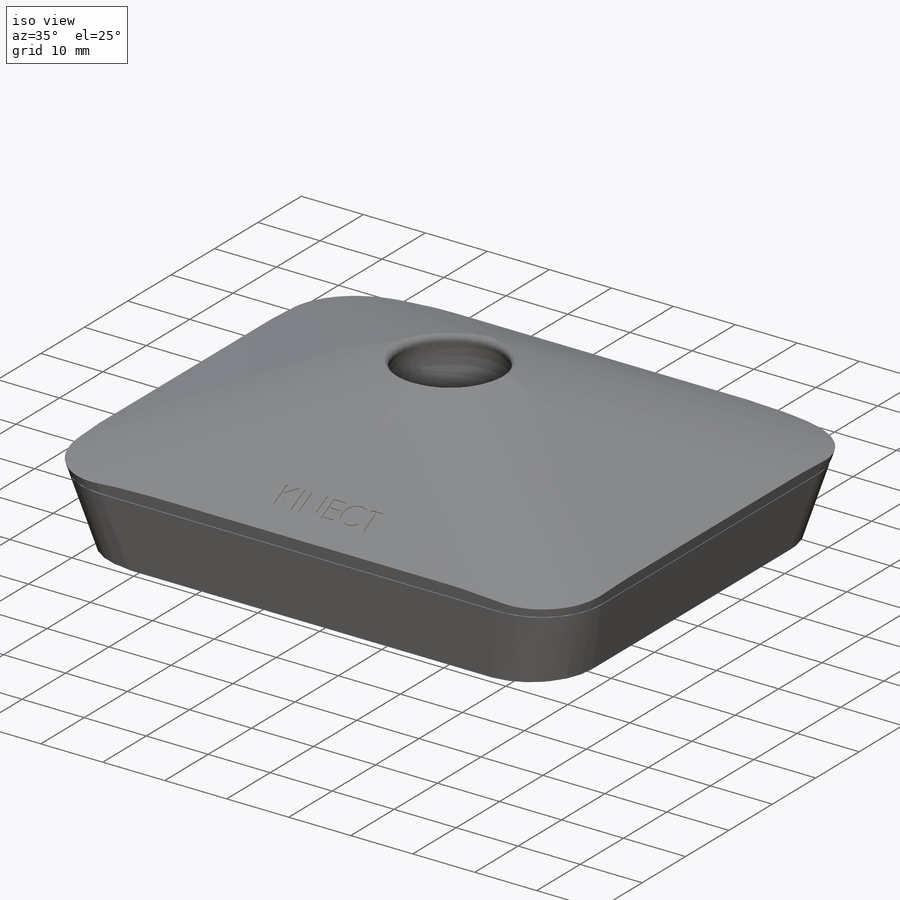
[diagram: iso view]
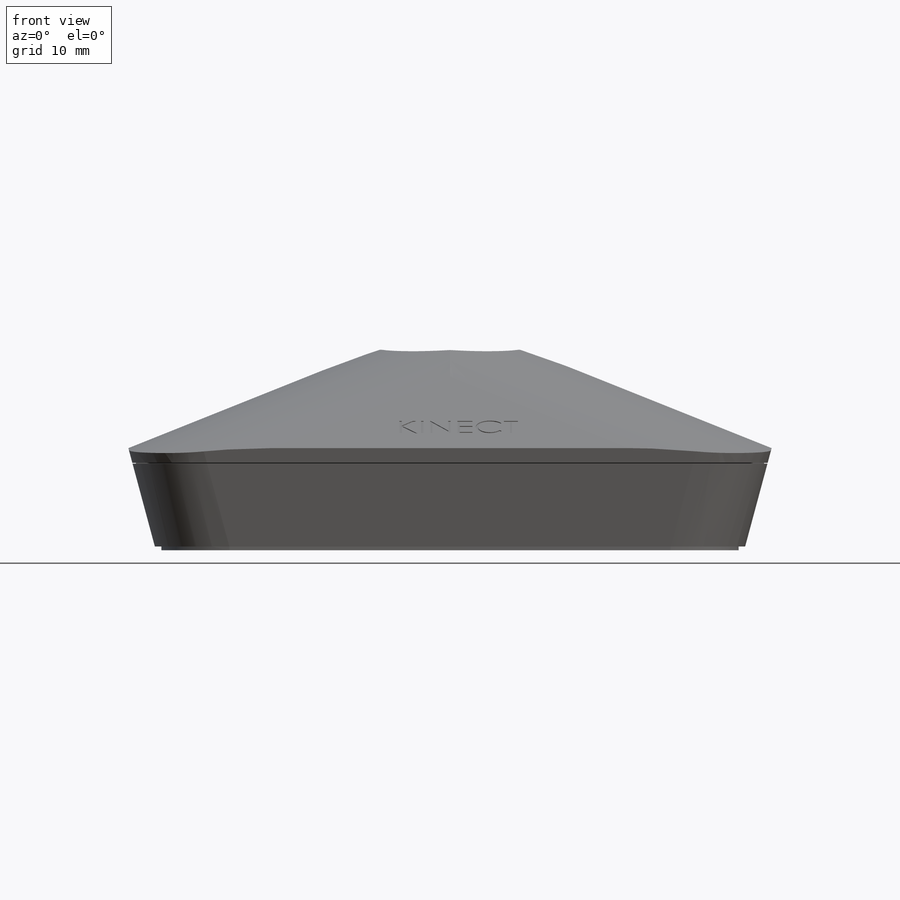
[diagram: front view]
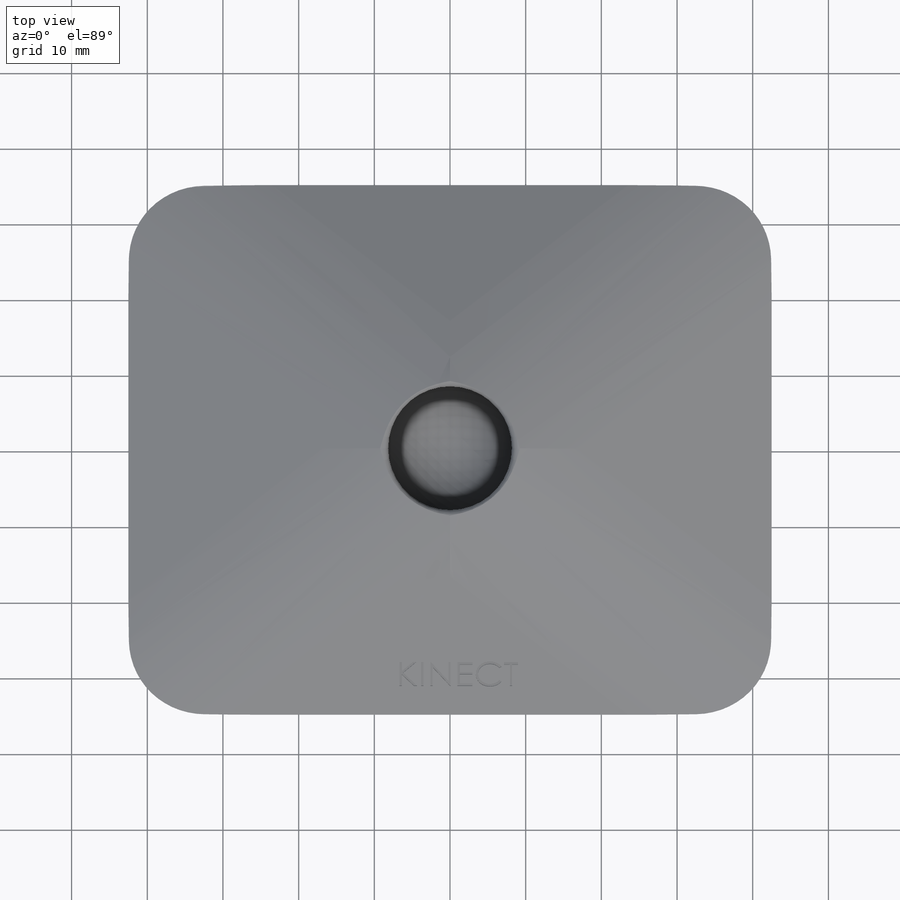
[diagram: top view]
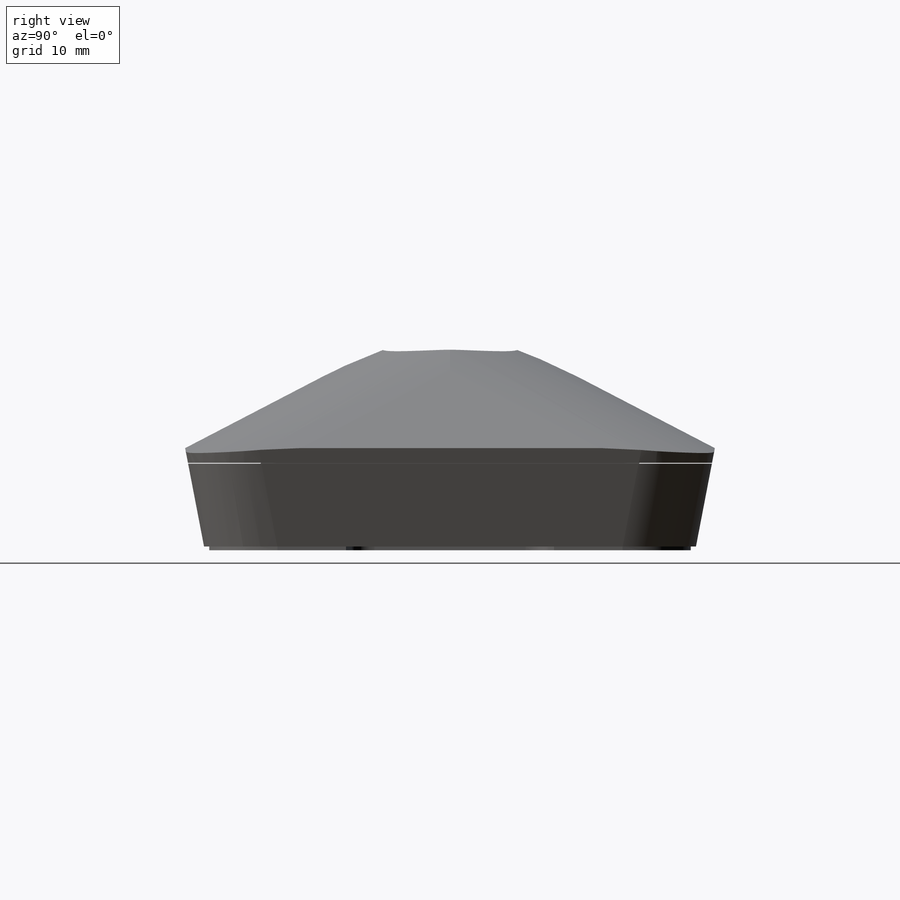
[diagram: right view]
SOLIDWORKS PART (.sldprt)
format: sldprt  version: not decoded by parser v0  size: 518,656 bytes
history: native  units: mm
features: sketch x13, cut_extrude x10, mirror x4, fillet x3, extrude x2, material x1, cut_revolve x1 (+11 scaffold rows collapsed)
feature tree (45):
  scaffold x11  (default folders/planes/origin — collapsed)
  material  "Material <not specified>"
  sketch  "Sketch1"  dims[D1=70.0mm D2=85.0mm]
  extrude  "Boss-Extrude1"  Depth=26mm
  sketch  "Sketch2"  dims[D1=3.5mm]
  cut_extrude  "Cut-Extrude1"  [1 undecoded]
  sketch  "Sketch3"  dims[D1=13.0mm]
  cut_extrude  "Cut-Extrude2"  [1 undecoded]
  sketch  "Sketch4"  dims[D1=2.5mm]
  cut_extrude  "Cut-Extrude3"  [1 undecoded]
  sketch  "Sketch5"  dims[D1=25.0mm]
  cut_extrude  "Cut-Extrude4"  [1 undecoded]
  sketch  "Sketch7"  dims[D1=5.0mm D2=5.0mm]
  cut_extrude  "Cut-Extrude5"  Depth=5mm
  sketch  "Sketch8"  dims[D1=~77.368898mm]
  cut_revolve  "Cut-Revolve3"  Angle=360deg
  fillet  "Fillet1"  Radius=40mm
  fillet  "Fillet2"  Radius=10mm
  fillet  "Fillet3"  Radius=1mm
  sketch  "Sketch9"
  cut_extrude  "Cut-Extrude6"  Depth=0.1mm
  sketch  "Sketch10"  dims[D1=19.0mm D2=19.0mm D3=19.0mm D4=19.0mm D5=~1.280683mm]
  extrude  "Boss-Extrude2"  Depth=0.5mm
  sketch  "Sketch11"  dims[c1.D1=0.1mm c1.D2=95.0mm c2.D1=2.0mm]
  cut_extrude  "Cut-Extrude7"  Depth=10mm
  mirror  "Mirror1"
  sketch  "Sketch12"  dims[c1.D1=0.1mm c1.D2=50.0mm c2.D1=2.1mm c2.D2=~11.04069mm]
  cut_extrude  "Cut-Extrude8"  Depth=1mm
  mirror  "Mirror2"
  sketch  "Sketch13"  dims[c1.D1=7.5mm c1.D2=5.0mm c2.D1=20.0mm]
  cut_extrude  "Cut-Extrude9"  Depth=4mm
  mirror  "Mirror3"
  sketch  "Sketch14"  dims[D1=~4.924796mm]
  cut_extrude  "Cut-Extrude10"  Depth=0.5mm
  mirror  "Mirror4"
decode coverage: 24 of 33 modeling features carry decoded parameters
note: ~ marks probable driven/reference dimensions
note: 4 parameter values undecoded
summary: no parameter record found for 4 features
note: suppression state not decoded; provenance and decode notes live in map.json
